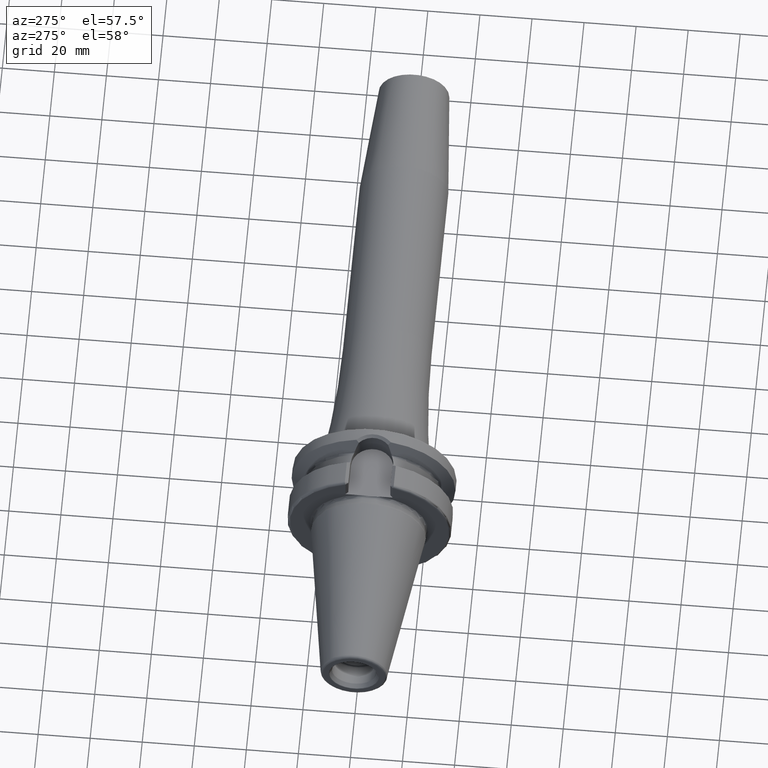
[diagram: clean part render]
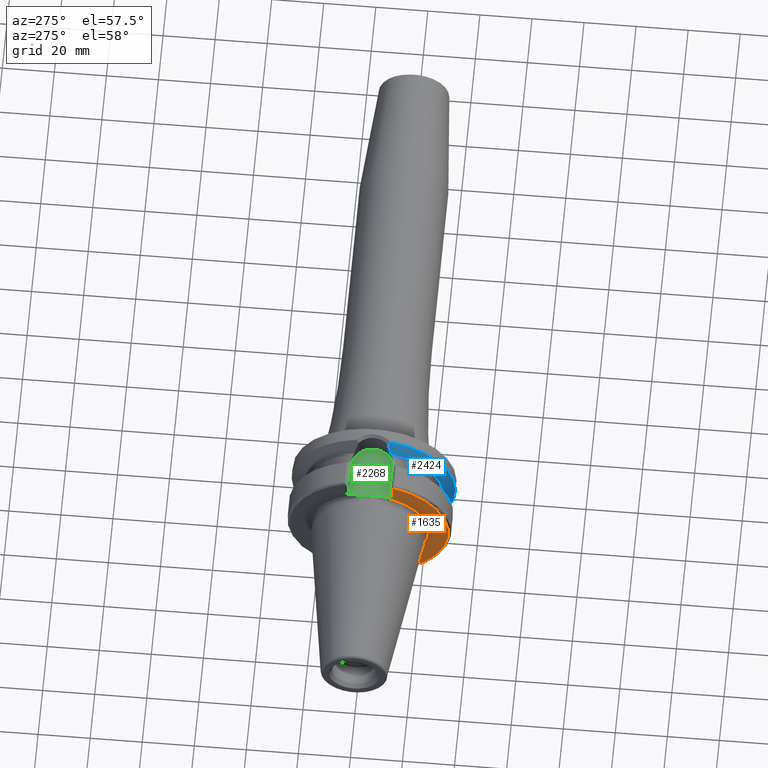
[diagram: same view with three faces highlighted in distinct colors, each labeled with its STEP entity id]
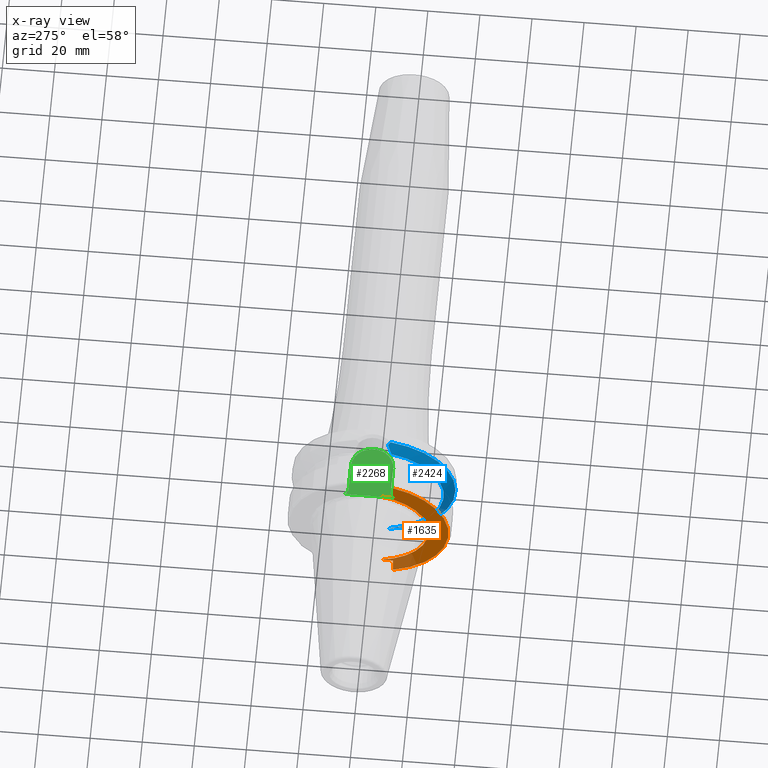
[diagram: x-ray of the same camera — body ghosted, the three highlighted faces saturated]
A machine part, auxiliary view with three faces highlighted in distinct colors.
The next image is the same camera in x-ray (body ghosted, the three faces saturated) — at least one of them is partly hidden behind the body in this view.
Their STEP definitions:

[orange] entity #1635 — the highlighted planar face has unit normal (1, 0, 0).
#111=CARTESIAN_POINT('',(2.E0,0.E0,0.E0));
#112=DIRECTION('',(-1.E0,0.E0,0.E0));
#113=DIRECTION('',(0.E0,-1.918678763451E-1,-9.814207650273E-1));
#114=AXIS2_PLACEMENT_3D('',#111,#112,#113);
#135=DIRECTION('',(-2.137863157207E-6,2.138092595446E-6,-9.999999999954E-1));
#136=VECTOR('',#135,6.649288203879E0);
#137=CARTESIAN_POINT('',(2.E0,-9.095E0,-2.245E1));
#138=LINE('',#137,#136);
#139=DIRECTION('',(4.462834027234E-6,-4.463945838797E-6,-9.999999999801E-1));
#140=VECTOR('',#139,6.649296399172E0);
#141=CARTESIAN_POINT('',(1.999970325294E0,-9.094970317901E0,2.909929639904E1));
#142=LINE('',#141,#140);
#597=CARTESIAN_POINT('',(1.999985784732E0,-9.094985783206E0,-2.909928820385E1));
#608=CARTESIAN_POINT('',(2.E0,0.E0,0.E0));
#609=DIRECTION('',(-1.E0,0.E0,0.E0));
#610=DIRECTION('',(0.E0,-2.983190208830E-1,-9.544662182495E-1));
#611=AXIS2_PLACEMENT_3D('',#608,#609,#610);
#684=DIRECTION('',(0.E0,1.E0,0.E0));
#685=VECTOR('',#684,4.706022328605E0);
#686=CARTESIAN_POINT('',(2.E0,-9.095E0,2.245E1));
#687=LINE('',#686,#685);
#725=CARTESIAN_POINT('',(2.E0,0.E0,0.E0));
#726=DIRECTION('',(1.E0,0.E0,0.E0));
#727=DIRECTION('',(0.E0,-1.918678763451E-1,9.814207650273E-1));
#728=AXIS2_PLACEMENT_3D('',#725,#726,#727);
#750=DIRECTION('',(0.E0,-1.E0,0.E0));
#751=VECTOR('',#750,4.706022328605E0);
#752=CARTESIAN_POINT('',(2.E0,-4.388977671395E0,-2.245E1));
#753=LINE('',#752,#751);
#1268=CARTESIAN_POINT('',(2.E0,-2.2875E1,0.E0));
#1270=VERTEX_POINT('',#1268);
#1334=CARTESIAN_POINT('',(2.E0,-4.388977671395E0,2.245E1));
#1335=VERTEX_POINT('',#1334);
#1342=CARTESIAN_POINT('',(2.E0,-4.388977671395E0,-2.245E1));
#1343=VERTEX_POINT('',#1342);
#1372=CARTESIAN_POINT('',(1.999970325294E0,-9.094970317901E0,2.909929639904E1));
#1373=CARTESIAN_POINT('',(2.E0,-9.095E0,2.245E1));
#1374=VERTEX_POINT('',#1372);
#1375=VERTEX_POINT('',#1373);
#1397=VERTEX_POINT('',#597);
#1399=CARTESIAN_POINT('',(2.E0,-9.095E0,-2.245E1));
#1400=VERTEX_POINT('',#1399);
#1615=CARTESIAN_POINT('',(2.E0,0.E0,0.E0));
#1616=DIRECTION('',(1.E0,0.E0,0.E0));
#1617=DIRECTION('',(0.E0,-1.E0,0.E0));
#1618=AXIS2_PLACEMENT_3D('',#1615,#1616,#1617);
#1619=PLANE('',#1618);
#1621=ORIENTED_EDGE('',*,*,#1620,.F.);
#1623=ORIENTED_EDGE('',*,*,#1622,.F.);
#1624=ORIENTED_EDGE('',*,*,#1587,.T.);
#1626=ORIENTED_EDGE('',*,*,#1625,.F.);
#1628=ORIENTED_EDGE('',*,*,#1627,.F.);
#1630=ORIENTED_EDGE('',*,*,#1629,.F.);
#1632=ORIENTED_EDGE('',*,*,#1631,.F.);
#1633=EDGE_LOOP('',(#1621,#1623,#1624,#1626,#1628,#1630,#1632));
#1634=FACE_OUTER_BOUND('',#1633,.F.);
#1635=ADVANCED_FACE('',(#1634),#1619,.F.);
#115=CIRCLE('',#114,2.2875E1);
#612=CIRCLE('',#611,3.04875E1);
#729=CIRCLE('',#728,2.2875E1);
#1587=EDGE_CURVE('',#1343,#1270,#115,.T.);
#1620=EDGE_CURVE('',#1400,#1397,#138,.T.);
#1622=EDGE_CURVE('',#1343,#1400,#753,.T.);
#1625=EDGE_CURVE('',#1335,#1270,#729,.T.);
#1627=EDGE_CURVE('',#1375,#1335,#687,.T.);
#1629=EDGE_CURVE('',#1374,#1375,#142,.T.);
#1631=EDGE_CURVE('',#1397,#1374,#612,.T.);

[blue] entity #2424 — the highlighted conical surface has half-angle 60 deg.
#246=CARTESIAN_POINT('',(2.162727746897E1,0.E0,0.E0));
#247=DIRECTION('',(1.E0,0.E0,0.E0));
#248=DIRECTION('',(0.E0,-1.E0,0.E0));
#249=AXIS2_PLACEMENT_3D('',#246,#247,#248);
#390=CARTESIAN_POINT('',(2.105861410330E1,-5.538624876202E0,-2.999548227013E1));
#391=CARTESIAN_POINT('',(2.093797596673E1,-5.667212931971E0,-2.975925502394E1));
#392=CARTESIAN_POINT('',(2.069265782077E1,-5.911926204526E0,-2.927912632192E1));
#393=CARTESIAN_POINT('',(2.031281915354E1,-6.245686951976E0,-2.853656269645E1));
#394=CARTESIAN_POINT('',(1.992518154069E1,-6.546159346979E0,-2.777970817700E1));
#395=CARTESIAN_POINT('',(1.953227047098E1,-6.814802578335E0,-2.701362543231E1));
#396=CARTESIAN_POINT('',(1.926930512179E1,-6.973122571862E0,-2.650168908776E1));
#397=CARTESIAN_POINT('',(1.91375E1,-7.047603759435E0,-2.624530807186E1));
#510=CARTESIAN_POINT('',(1.91375E1,-7.047603759435E0,2.624530807186E1));
#511=CARTESIAN_POINT('',(1.929439846909E1,-6.958942680509E0,2.655049946618E1));
#512=CARTESIAN_POINT('',(1.960708097731E1,-6.768483112184E0,2.715932176805E1));
#513=CARTESIAN_POINT('',(2.007318172595E1,-6.438434899025E0,2.806848574420E1));
#514=CARTESIAN_POINT('',(2.053077179900E1,-6.062239171320E0,2.896247872395E1));
#515=CARTESIAN_POINT('',(2.082597009394E1,-5.780364268794E0,2.954002310797E1));
#516=CARTESIAN_POINT('',(2.097101986641E1,-5.630536201239E0,2.982398115757E1));
#768=CARTESIAN_POINT('',(1.91375E1,0.E0,0.E0));
#769=DIRECTION('',(-1.E0,0.E0,0.E0));
#770=DIRECTION('',(0.E0,-2.593406914876E-1,-9.657859005694E-1));
#771=AXIS2_PLACEMENT_3D('',#768,#769,#770);
#773=CARTESIAN_POINT('',(2.162727746897E1,-6.376922817779E0,-3.083500464774E1));
#774=CARTESIAN_POINT('',(2.156218909379E1,-6.282140745244E0,-3.073948435803E1));
#775=CARTESIAN_POINT('',(2.143328374119E1,-6.093677896303E0,-3.054993954761E1));
#776=CARTESIAN_POINT('',(2.124372162968E1,-5.814243469633E0,-3.027008547410E1));
#777=CARTESIAN_POINT('',(2.111989421200E1,-5.630139092100E0,-3.008651882343E1));
#778=CARTESIAN_POINT('',(2.105861410330E1,-5.538624876202E0,-2.999548227013E1));
#797=CARTESIAN_POINT('',(2.162727746897E1,0.E0,0.E0));
#798=DIRECTION('',(1.E0,0.E0,0.E0));
#799=DIRECTION('',(0.E0,-2.095835969751E-1,9.777907321503E-1));
#800=AXIS2_PLACEMENT_3D('',#797,#798,#799);
#977=CARTESIAN_POINT('',(2.097101986641E1,-5.630536201239E0,2.982398115757E1));
#978=CARTESIAN_POINT('',(2.104137563571E1,-5.736016200038E0,2.992807979955E1));
#979=CARTESIAN_POINT('',(2.118379229094E1,-5.948393440019E0,3.013829960430E1));
#980=CARTESIAN_POINT('',(2.140255866426E1,-6.271300885570E0,3.045972523365E1));
#981=CARTESIAN_POINT('',(2.155180188305E1,-6.489453954811E0,3.067802584122E1));
#982=CARTESIAN_POINT('',(2.162727746897E1,-6.599263509754E0,3.078818567858E1));
#1234=CARTESIAN_POINT('',(1.91375E1,-7.047603759435E0,-2.624530807186E1));
#1235=CARTESIAN_POINT('',(1.91375E1,-7.047603759435E0,2.624530807186E1));
#1236=VERTEX_POINT('',#1234);
#1237=VERTEX_POINT('',#1235);
#1250=CARTESIAN_POINT('',(2.162727746897E1,-3.14875E1,0.E0));
#1251=CARTESIAN_POINT('',(2.162727746897E1,-6.376922817779E0,
-3.083500464774E1));
#1252=VERTEX_POINT('',#1250);
#1253=VERTEX_POINT('',#1251);
#1258=CARTESIAN_POINT('',(2.162727746897E1,-6.599263509754E0,3.078818567858E1));
#1259=VERTEX_POINT('',#1258);
#1350=VERTEX_POINT('',#516);
#1358=VERTEX_POINT('',#390);
#2407=CARTESIAN_POINT('',(2.038238873448E1,0.E0,0.E0));
#2408=DIRECTION('',(1.E0,0.E0,0.E0));
#2409=DIRECTION('',(0.E0,-1.E0,0.E0));
#2410=AXIS2_PLACEMENT_3D('',#2407,#2408,#2409);
#2411=CONICAL_SURFACE('',#2410,2.933128946210E1,6.E1);
#2413=ORIENTED_EDGE('',*,*,#2412,.T.);
#2414=ORIENTED_EDGE('',*,*,#1779,.T.);
#2416=ORIENTED_EDGE('',*,*,#2415,.T.);
#2417=ORIENTED_EDGE('',*,*,#1902,.T.);
#2418=ORIENTED_EDGE('',*,*,#1947,.T.);
#2419=ORIENTED_EDGE('',*,*,#1998,.T.);
#2421=ORIENTED_EDGE('',*,*,#2420,.T.);
#2422=EDGE_LOOP('',(#2413,#2414,#2416,#2417,#2418,#2419,#2421));
#2423=FACE_OUTER_BOUND('',#2422,.F.);
#2424=ADVANCED_FACE('',(#2423),#2411,.T.);
#250=CIRCLE('',#249,3.14875E1);
#398=B_SPLINE_CURVE_WITH_KNOTS('',3,(#390,#391,#392,#393,#394,#395,#396,#397),
.UNSPECIFIED.,.F.,.F.,(4,1,1,1,1,4),(0.E0,2.E-1,4.E-1,6.E-1,8.E-1,1.E0),
.UNSPECIFIED.);
#517=B_SPLINE_CURVE_WITH_KNOTS('',3,(#510,#511,#512,#513,#514,#515,#516),
.UNSPECIFIED.,.F.,.F.,(4,1,1,1,4),(0.E0,2.5E-1,5.E-1,7.5E-1,1.E0),
.UNSPECIFIED.);
#772=CIRCLE('',#771,2.717507892421E1);
#779=B_SPLINE_CURVE_WITH_KNOTS('',3,(#773,#774,#775,#776,#777,#778),
.UNSPECIFIED.,.F.,.F.,(4,1,1,4),(0.E0,3.333333333333E-1,6.666666666667E-1,1.E0),
.UNSPECIFIED.);
#801=CIRCLE('',#800,3.14875E1);
#983=B_SPLINE_CURVE_WITH_KNOTS('',3,(#977,#978,#979,#980,#981,#982),
.UNSPECIFIED.,.F.,.F.,(4,1,1,4),(0.E0,3.333333333333E-1,6.666666666667E-1,1.E0),
.UNSPECIFIED.);
#1779=EDGE_CURVE('',#1252,#1253,#250,.T.);
#1902=EDGE_CURVE('',#1358,#1236,#398,.T.);
#1947=EDGE_CURVE('',#1236,#1237,#772,.T.);
#1998=EDGE_CURVE('',#1237,#1350,#517,.T.);
#2412=EDGE_CURVE('',#1259,#1252,#801,.T.);
#2415=EDGE_CURVE('',#1253,#1358,#779,.T.);
#2420=EDGE_CURVE('',#1350,#1259,#983,.T.);

[green] entity #2268 — the highlighted planar face has unit normal (0, 0, 1).
#680=DIRECTION('',(1.E0,0.E0,0.E0));
#681=VECTOR('',#680,1.2155E1);
#682=CARTESIAN_POINT('',(3.E0,-8.095E0,2.245E1));
#683=LINE('',#682,#681);
#684=DIRECTION('',(0.E0,1.E0,0.E0));
#685=VECTOR('',#684,4.706022328605E0);
#686=CARTESIAN_POINT('',(2.E0,-9.095E0,2.245E1));
#687=LINE('',#686,#685);
#688=DIRECTION('',(0.E0,1.E0,0.E0));
#689=VECTOR('',#688,4.706022328605E0);
#690=CARTESIAN_POINT('',(2.E0,4.388977671395E0,2.245E1));
#691=LINE('',#690,#689);
#692=DIRECTION('',(-1.E0,0.E0,0.E0));
#693=VECTOR('',#692,1.2155E1);
#694=CARTESIAN_POINT('',(1.5155E1,8.095E0,2.245E1));
#695=LINE('',#694,#693);
#696=CARTESIAN_POINT('',(1.5155E1,0.E0,2.245E1));
#697=DIRECTION('',(0.E0,0.E0,1.E0));
#698=DIRECTION('',(0.E0,-1.E0,0.E0));
#699=AXIS2_PLACEMENT_3D('',#696,#697,#698);
#705=DIRECTION('',(7.071067811865E-1,7.071067811865E-1,0.E0));
#706=VECTOR('',#705,1.414213562373E0);
#707=CARTESIAN_POINT('',(2.E0,-9.095E0,2.245E1));
#708=LINE('',#707,#706);
#714=CARTESIAN_POINT('',(2.E0,-4.388977671395E0,2.245E1));
#715=CARTESIAN_POINT('',(2.E0,-3.970864393558E0,2.245E1));
#716=CARTESIAN_POINT('',(1.981114905487E0,-3.134790252725E0,2.245E1));
#717=CARTESIAN_POINT('',(1.935909306649E0,-1.881114481277E0,2.245E1));
#718=CARTESIAN_POINT('',(1.903922826077E0,-6.271978192649E-1,2.245E1));
#719=CARTESIAN_POINT('',(1.903921553166E0,6.271174205746E-1,2.245E1));
#720=CARTESIAN_POINT('',(1.935907277499E0,1.881058976319E0,2.245E1));
#721=CARTESIAN_POINT('',(1.981114329557E0,3.134769380755E0,2.245E1));
#722=CARTESIAN_POINT('',(2.E0,3.970858027314E0,2.245E1));
#723=CARTESIAN_POINT('',(2.E0,4.388977671395E0,2.245E1));
#730=DIRECTION('',(-7.071067811865E-1,7.071067811865E-1,0.E0));
#731=VECTOR('',#730,1.414213562373E0);
#732=CARTESIAN_POINT('',(3.E0,8.095E0,2.245E1));
#733=LINE('',#732,#731);
#1328=CARTESIAN_POINT('',(1.5155E1,-8.095E0,2.245E1));
#1329=CARTESIAN_POINT('',(1.5155E1,8.095E0,2.245E1));
#1330=VERTEX_POINT('',#1328);
#1331=VERTEX_POINT('',#1329);
#1332=CARTESIAN_POINT('',(2.E0,4.388977671395E0,2.245E1));
#1333=VERTEX_POINT('',#1332);
#1334=CARTESIAN_POINT('',(2.E0,-4.388977671395E0,2.245E1));
#1335=VERTEX_POINT('',#1334);
#1369=CARTESIAN_POINT('',(3.E0,-8.095E0,2.245E1));
#1371=VERTEX_POINT('',#1369);
#1373=CARTESIAN_POINT('',(2.E0,-9.095E0,2.245E1));
#1375=VERTEX_POINT('',#1373);
#1382=CARTESIAN_POINT('',(2.E0,9.095E0,2.245E1));
#1383=VERTEX_POINT('',#1382);
#1384=CARTESIAN_POINT('',(3.E0,8.095E0,2.245E1));
#1386=VERTEX_POINT('',#1384);
#2250=CARTESIAN_POINT('',(0.E0,0.E0,2.245E1));
#2251=DIRECTION('',(0.E0,0.E0,1.E0));
#2252=DIRECTION('',(1.E0,0.E0,0.E0));
#2253=AXIS2_PLACEMENT_3D('',#2250,#2251,#2252);
#2254=PLANE('',#2253);
#2255=ORIENTED_EDGE('',*,*,#2016,.F.);
#2257=ORIENTED_EDGE('',*,*,#2256,.F.);
#2258=ORIENTED_EDGE('',*,*,#1627,.T.);
#2260=ORIENTED_EDGE('',*,*,#2259,.T.);
#2261=ORIENTED_EDGE('',*,*,#1605,.T.);
#2263=ORIENTED_EDGE('',*,*,#2262,.F.);
#2264=ORIENTED_EDGE('',*,*,#2241,.F.);
#2265=ORIENTED_EDGE('',*,*,#1987,.F.);
#2266=EDGE_LOOP('',(#2255,#2257,#2258,#2260,#2261,#2263,#2264,#2265));
#2267=FACE_OUTER_BOUND('',#2266,.F.);
#2268=ADVANCED_FACE('',(#2267),#2254,.T.);
#700=CIRCLE('',#699,8.095E0);
#724=B_SPLINE_CURVE_WITH_KNOTS('',3,(#714,#715,#716,#717,#718,#719,#720,#721,
#722,#723),.UNSPECIFIED.,.F.,.F.,(4,1,1,1,1,1,1,4),(0.E0,1.428571428571E-1,
2.857142857143E-1,4.285714285714E-1,5.714285714286E-1,7.142857142857E-1,
8.571428571429E-1,1.E0),.UNSPECIFIED.);
#1605=EDGE_CURVE('',#1333,#1383,#691,.T.);
#1627=EDGE_CURVE('',#1375,#1335,#687,.T.);
#1987=EDGE_CURVE('',#1330,#1331,#700,.T.);
#2016=EDGE_CURVE('',#1371,#1330,#683,.T.);
#2241=EDGE_CURVE('',#1331,#1386,#695,.T.);
#2256=EDGE_CURVE('',#1375,#1371,#708,.T.);
#2259=EDGE_CURVE('',#1335,#1333,#724,.T.);
#2262=EDGE_CURVE('',#1386,#1383,#733,.T.);